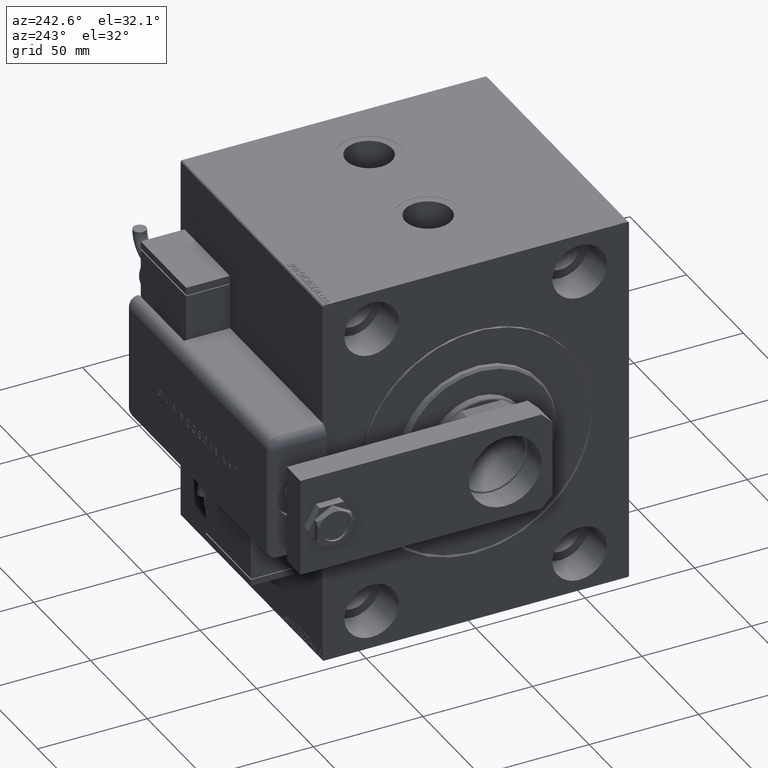
[diagram: clean part render]
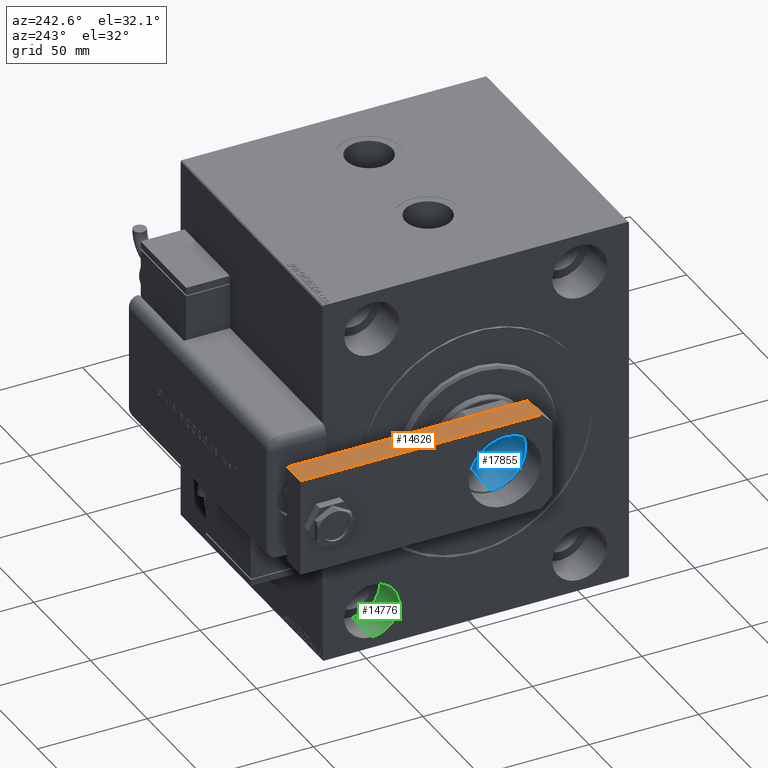
[diagram: same view with three faces highlighted in distinct colors, each labeled with its STEP entity id]
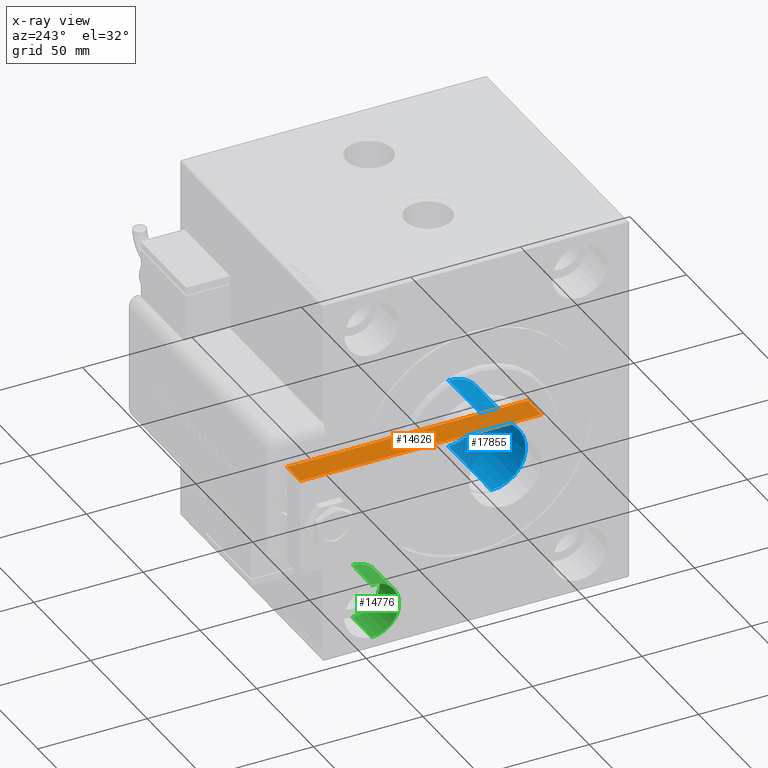
[diagram: x-ray of the same camera — body ghosted, the three highlighted faces saturated]
A machine part, auxiliary view with three faces highlighted in distinct colors.
The next image is the same camera in x-ray (body ghosted, the three faces saturated) — at least one of them is partly hidden behind the body in this view.
Their STEP definitions:

[orange] entity #14626 — the highlighted planar face has unit normal (-0, -0, -1).
#1314 = AXIS2_PLACEMENT_3D ( 'NONE', #50170, #51372, #4815 ) ;
#2345 = EDGE_LOOP ( 'NONE', ( #8382, #9345, #45956, #42668 ) ) ;
#4017 = LINE ( 'NONE', #40904, #6500 ) ;
#4815 = DIRECTION ( 'NONE',  ( 6.033820786006285224E-17, 1.000000000000000000, 0.000000000000000000 ) ) ;
#5538 = LINE ( 'NONE', #39070, #42897 ) ;
#6500 = VECTOR ( 'NONE', #12813, 1000.000000000000000 ) ;
#8382 = ORIENTED_EDGE ( 'NONE', *, *, #56568, .T. ) ;
#9345 = ORIENTED_EDGE ( 'NONE', *, *, #9585, .T. ) ;
#9585 = EDGE_CURVE ( 'NONE', #15917, #58138, #59402, .T. ) ;
#12813 = DIRECTION ( 'NONE',  ( -6.033820786006285224E-17, -1.000000000000000000, 0.000000000000000000 ) ) ;
#12999 = VERTEX_POINT ( 'NONE', #55557 ) ;
#14354 = CARTESIAN_POINT ( 'NONE',  ( -22.50000000000001066, 5.000000000000031974, 12.00000000000000000 ) ) ;
#14606 = CARTESIAN_POINT ( 'NONE',  ( -22.50000000000000355, 115.0000000000000000, 0.000000000000000000 ) ) ;
#14626 = ADVANCED_FACE ( 'NONE', ( #22667 ), #23261, .F. ) ;
#15917 = VERTEX_POINT ( 'NONE', #43427 ) ;
#17512 = VECTOR ( 'NONE', #31865, 1000.000000000000000 ) ;
#19752 = DIRECTION ( 'NONE',  ( -6.033820786006285224E-17, -1.000000000000000000, 0.000000000000000000 ) ) ;
#21180 = CARTESIAN_POINT ( 'NONE',  ( -22.50000000000000355, 115.0000000000000000, 12.00000000000000000 ) ) ;
#22667 = FACE_OUTER_BOUND ( 'NONE', #2345, .T. ) ;
#23261 = PLANE ( 'NONE',  #1314 ) ;
#25199 = VECTOR ( 'NONE', #29649, 1000.000000000000000 ) ;
#29649 = DIRECTION ( 'NONE',  ( -0.000000000000000000, -0.000000000000000000, -1.000000000000000000 ) ) ;
#30272 = EDGE_CURVE ( 'NONE', #12999, #58138, #4017, .T. ) ;
#31865 = DIRECTION ( 'NONE',  ( 0.000000000000000000, 0.000000000000000000, 1.000000000000000000 ) ) ;
#39070 = CARTESIAN_POINT ( 'NONE',  ( -22.50000000000000355, 115.0000000000000000, 0.000000000000000000 ) ) ;
#40904 = CARTESIAN_POINT ( 'NONE',  ( -22.50000000000000355, 115.0000000000000000, 12.00000000000000000 ) ) ;
#42429 = CARTESIAN_POINT ( 'NONE',  ( -22.50000000000001066, 5.000000000000031974, 12.00000000000000000 ) ) ;
#42668 = ORIENTED_EDGE ( 'NONE', *, *, #47536, .T. ) ;
#42897 = VECTOR ( 'NONE', #19752, 1000.000000000000000 ) ;
#43427 = CARTESIAN_POINT ( 'NONE',  ( -22.50000000000001066, 5.000000000000031974, 0.000000000000000000 ) ) ;
#44144 = LINE ( 'NONE', #21180, #25199 ) ;
#45956 = ORIENTED_EDGE ( 'NONE', *, *, #30272, .F. ) ;
#47536 = EDGE_CURVE ( 'NONE', #12999, #52927, #44144, .T. ) ;
#50170 = CARTESIAN_POINT ( 'NONE',  ( -22.50000000000000355, 115.0000000000000000, 12.00000000000000000 ) ) ;
#51372 = DIRECTION ( 'NONE',  ( 1.000000000000000000, -6.033820786006285224E-17, 0.000000000000000000 ) ) ;
#52927 = VERTEX_POINT ( 'NONE', #14606 ) ;
#55557 = CARTESIAN_POINT ( 'NONE',  ( -22.50000000000000355, 115.0000000000000000, 12.00000000000000000 ) ) ;
#56568 = EDGE_CURVE ( 'NONE', #52927, #15917, #5538, .T. ) ;
#58138 = VERTEX_POINT ( 'NONE', #42429 ) ;
#59402 = LINE ( 'NONE', #14354, #17512 ) ;

[blue] entity #17855 — the highlighted cylindrical surface (partial cylindrical patch) has radius 15.75 mm, axis along (-1, 0, 0).
#3544 = CYLINDRICAL_SURFACE ( 'NONE', #44779, 15.74999999999999289 ) ;
#3992 = AXIS2_PLACEMENT_3D ( 'NONE', #33882, #57179, #20595 ) ;
#4869 = VECTOR ( 'NONE', #31547, 1000.000000000000000 ) ;
#5950 = CIRCLE ( 'NONE', #25282, 15.74999999999999289 ) ;
#7274 = CARTESIAN_POINT ( 'NONE',  ( -15.74999999999999289, 1.928818708657080556E-15, 64.99999999999998579 ) ) ;
#8728 = EDGE_CURVE ( 'NONE', #27502, #30545, #34770, .T. ) ;
#8732 = EDGE_CURVE ( 'NONE', #27502, #22375, #34182, .T. ) ;
#11273 = CARTESIAN_POINT ( 'NONE',  ( -15.74999999999999289, 1.928818708657080556E-15, 64.70000000000000284 ) ) ;
#14460 = CARTESIAN_POINT ( 'NONE',  ( -15.74999999999999289, 1.928818708657080556E-15, 26.99999999999998934 ) ) ;
#17855 = ADVANCED_FACE ( 'NONE', ( #30753 ), #3544, .F. ) ;
#18625 = CARTESIAN_POINT ( 'NONE',  ( 15.74999999999999289, 0.000000000000000000, 64.70000000000000284 ) ) ;
#20595 = DIRECTION ( 'NONE',  ( 1.000000000000000000, 0.000000000000000000, 0.000000000000000000 ) ) ;
#21999 = CARTESIAN_POINT ( 'NONE',  ( 0.000000000000000000, 0.000000000000000000, 64.99999999999998579 ) ) ;
#22375 = VERTEX_POINT ( 'NONE', #11273 ) ;
#25035 = ORIENTED_EDGE ( 'NONE', *, *, #49885, .T. ) ;
#25282 = AXIS2_PLACEMENT_3D ( 'NONE', #44925, #36419, #53707 ) ;
#27502 = VERTEX_POINT ( 'NONE', #14460 ) ;
#30545 = VERTEX_POINT ( 'NONE', #39872 ) ;
#30753 = FACE_OUTER_BOUND ( 'NONE', #36540, .T. ) ;
#31547 = DIRECTION ( 'NONE',  ( -0.000000000000000000, -0.000000000000000000, 1.000000000000000000 ) ) ;
#33882 = CARTESIAN_POINT ( 'NONE',  ( 0.000000000000000000, 0.000000000000000000, 26.99999999999998934 ) ) ;
#34182 = LINE ( 'NONE', #7274, #41598 ) ;
#34770 = CIRCLE ( 'NONE', #3992, 15.74999999999999289 ) ;
#35518 = ORIENTED_EDGE ( 'NONE', *, *, #8732, .T. ) ;
#36419 = DIRECTION ( 'NONE',  ( 0.000000000000000000, 0.000000000000000000, 1.000000000000000000 ) ) ;
#36540 = EDGE_LOOP ( 'NONE', ( #43569, #35518, #25035, #54685 ) ) ;
#39872 = CARTESIAN_POINT ( 'NONE',  ( 15.74999999999999289, 0.000000000000000000, 26.99999999999998934 ) ) ;
#41598 = VECTOR ( 'NONE', #52645, 1000.000000000000000 ) ;
#43274 = VERTEX_POINT ( 'NONE', #18625 ) ;
#43569 = ORIENTED_EDGE ( 'NONE', *, *, #8728, .F. ) ;
#44779 = AXIS2_PLACEMENT_3D ( 'NONE', #21999, #54052, #49223 ) ;
#44925 = CARTESIAN_POINT ( 'NONE',  ( 0.000000000000000000, 0.000000000000000000, 64.70000000000000284 ) ) ;
#46344 = EDGE_CURVE ( 'NONE', #30545, #43274, #49710, .T. ) ;
#49223 = DIRECTION ( 'NONE',  ( 1.000000000000000000, 0.000000000000000000, 0.000000000000000000 ) ) ;
#49710 = LINE ( 'NONE', #54549, #4869 ) ;
#49885 = EDGE_CURVE ( 'NONE', #22375, #43274, #5950, .T. ) ;
#52645 = DIRECTION ( 'NONE',  ( -0.000000000000000000, -0.000000000000000000, 1.000000000000000000 ) ) ;
#53707 = DIRECTION ( 'NONE',  ( 1.000000000000000000, 0.000000000000000000, 0.000000000000000000 ) ) ;
#54052 = DIRECTION ( 'NONE',  ( -0.000000000000000000, -0.000000000000000000, 1.000000000000000000 ) ) ;
#54549 = CARTESIAN_POINT ( 'NONE',  ( 15.74999999999999289, 0.000000000000000000, 64.99999999999998579 ) ) ;
#54685 = ORIENTED_EDGE ( 'NONE', *, *, #46344, .F. ) ;
#57179 = DIRECTION ( 'NONE',  ( -0.000000000000000000, -0.000000000000000000, 1.000000000000000000 ) ) ;

[green] entity #14776 — the highlighted cylindrical surface (edge-blend (fillet) strip) has radius 12.5 mm, axis along (-1, -0, -0).
#149 = AXIS2_PLACEMENT_3D ( 'NONE', #52313, #25400, #11792 ) ;
#258 = EDGE_CURVE ( 'NONE', #41704, #17384, #26237, .T. ) ;
#431 = DIRECTION ( 'NONE',  ( -1.000000000000000000, 0.000000000000000000, 0.000000000000000000 ) ) ;
#4196 = AXIS2_PLACEMENT_3D ( 'NONE', #25053, #52264, #10852 ) ;
#8929 = LINE ( 'NONE', #59431, #13969 ) ;
#10852 = DIRECTION ( 'NONE',  ( 0.000000000000000000, 0.000000000000000000, 1.000000000000000000 ) ) ;
#11792 = DIRECTION ( 'NONE',  ( 0.000000000000000000, 0.000000000000000000, 1.000000000000000000 ) ) ;
#11811 = CARTESIAN_POINT ( 'NONE',  ( 17.00000000000000000, 47.50000000000000711, -55.00000000000000711 ) ) ;
#13969 = VECTOR ( 'NONE', #27688, 1000.000000000000000 ) ;
#14776 = ADVANCED_FACE ( 'NONE', ( #46847 ), #33813, .F. ) ;
#17384 = VERTEX_POINT ( 'NONE', #11811 ) ;
#17527 = CARTESIAN_POINT ( 'NONE',  ( 17.00000000000000000, 47.50000000000000711, -55.00000000000000711 ) ) ;
#18916 = EDGE_CURVE ( 'NONE', #55804, #45483, #48625, .T. ) ;
#18942 = ORIENTED_EDGE ( 'NONE', *, *, #258, .F. ) ;
#21030 = EDGE_CURVE ( 'NONE', #41704, #55804, #8929, .T. ) ;
#21544 = EDGE_LOOP ( 'NONE', ( #18942, #57621, #24666, #42074 ) ) ;
#24311 = CARTESIAN_POINT ( 'NONE',  ( 0.000000000000000000, 47.50000000000000711, -67.50000000000000000 ) ) ;
#24666 = ORIENTED_EDGE ( 'NONE', *, *, #18916, .T. ) ;
#25053 = CARTESIAN_POINT ( 'NONE',  ( 17.00000000000000000, 47.50000000000000711, -67.50000000000000000 ) ) ;
#25400 = DIRECTION ( 'NONE',  ( -1.000000000000000000, 0.000000000000000000, 0.000000000000000000 ) ) ;
#26237 = CIRCLE ( 'NONE', #149, 12.49999999999999645 ) ;
#26604 = LINE ( 'NONE', #17527, #31012 ) ;
#27688 = DIRECTION ( 'NONE',  ( -1.000000000000000000, -0.000000000000000000, -0.000000000000000000 ) ) ;
#30966 = CARTESIAN_POINT ( 'NONE',  ( 17.00000000000000000, 47.50000000000000711, -80.00000000000000000 ) ) ;
#31012 = VECTOR ( 'NONE', #32009, 1000.000000000000000 ) ;
#32009 = DIRECTION ( 'NONE',  ( -1.000000000000000000, -0.000000000000000000, -0.000000000000000000 ) ) ;
#32244 = AXIS2_PLACEMENT_3D ( 'NONE', #24311, #431, #41545 ) ;
#33813 = CYLINDRICAL_SURFACE ( 'NONE', #4196, 12.49999999999999645 ) ;
#38982 = CARTESIAN_POINT ( 'NONE',  ( 0.000000000000000000, 47.50000000000000711, -80.00000000000000000 ) ) ;
#41545 = DIRECTION ( 'NONE',  ( 0.000000000000000000, 0.000000000000000000, 1.000000000000000000 ) ) ;
#41704 = VERTEX_POINT ( 'NONE', #30966 ) ;
#42074 = ORIENTED_EDGE ( 'NONE', *, *, #47951, .F. ) ;
#45483 = VERTEX_POINT ( 'NONE', #59062 ) ;
#46847 = FACE_OUTER_BOUND ( 'NONE', #21544, .T. ) ;
#47951 = EDGE_CURVE ( 'NONE', #17384, #45483, #26604, .T. ) ;
#48625 = CIRCLE ( 'NONE', #32244, 12.49999999999999645 ) ;
#52264 = DIRECTION ( 'NONE',  ( -1.000000000000000000, -0.000000000000000000, -0.000000000000000000 ) ) ;
#52313 = CARTESIAN_POINT ( 'NONE',  ( 17.00000000000000000, 47.50000000000000711, -67.50000000000000000 ) ) ;
#55804 = VERTEX_POINT ( 'NONE', #38982 ) ;
#57621 = ORIENTED_EDGE ( 'NONE', *, *, #21030, .T. ) ;
#59062 = CARTESIAN_POINT ( 'NONE',  ( 0.000000000000000000, 47.50000000000000711, -55.00000000000000711 ) ) ;
#59431 = CARTESIAN_POINT ( 'NONE',  ( 17.00000000000000000, 47.50000000000000711, -80.00000000000000000 ) ) ;